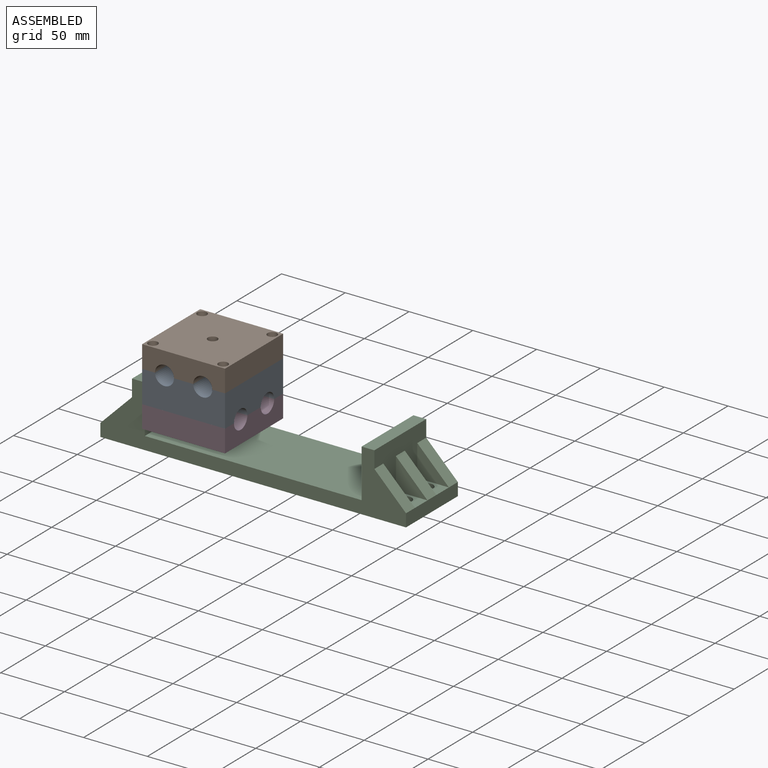
[diagram: assembled view]
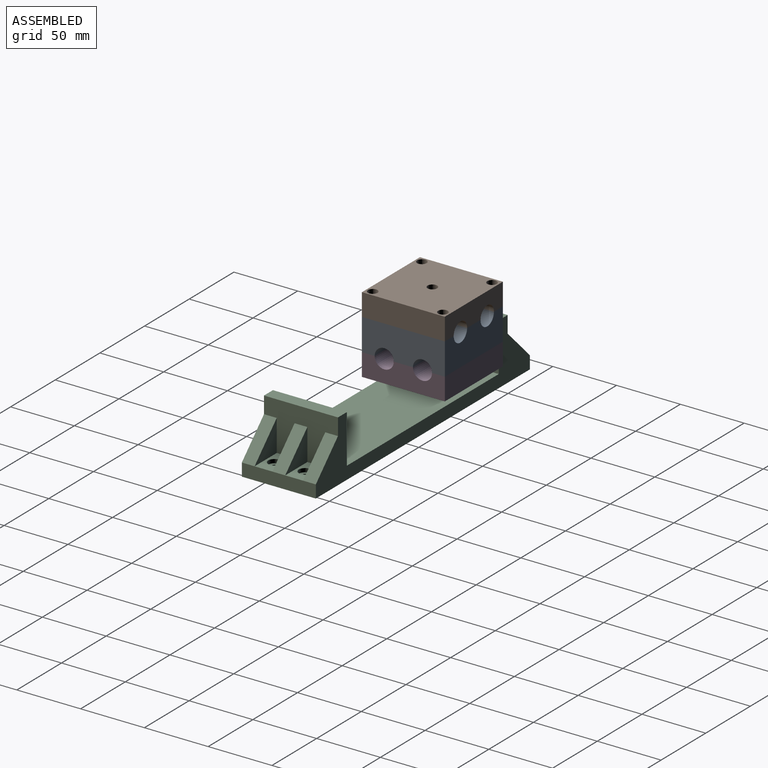
[diagram: assembled view, second angle]
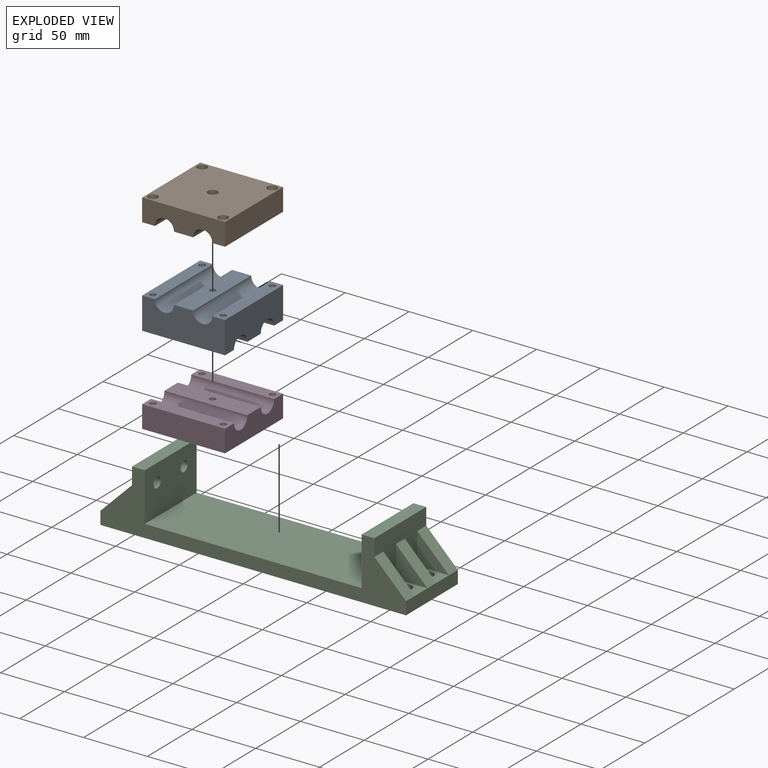
[diagram: exploded view]
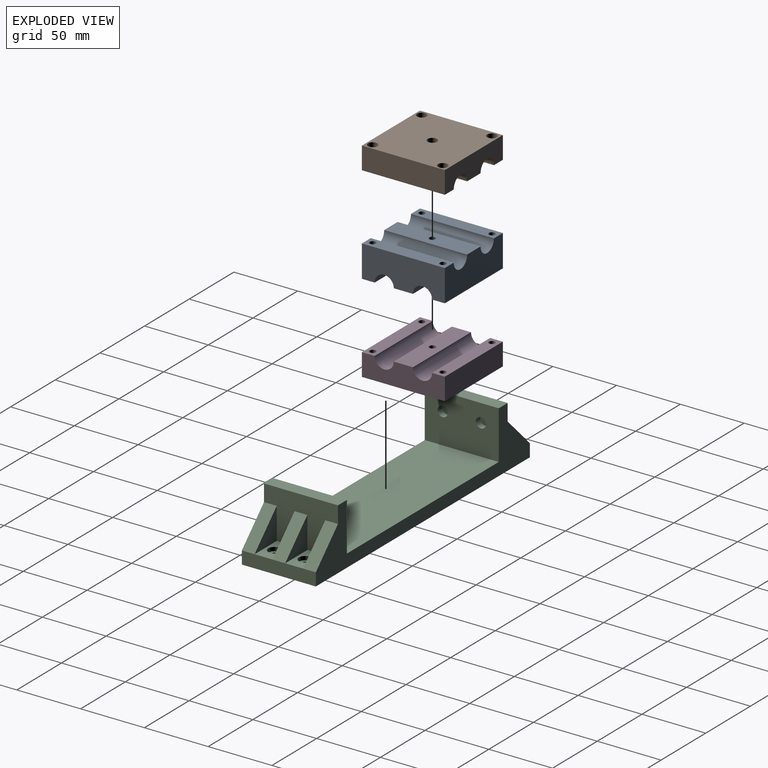
[diagram: exploded view, second angle]
ASSEMBLY  parts=4 mates=7
PART A: 19 faces, bbox 65x65x25 mm
  f0: plane 65x10mm, normal (0,0,1), area 613.8mm2, adj f5,f6,f9,f10,f15,f18
  f1: plane 65x10mm, normal (0,0,1), area 613.8mm2, adj f4,f8,f9,f10,f14,f17
  f2: plane 65x10mm, normal (0,0,-1), area 613.8mm2, adj f4,f5,f9,f11,f17,f18
  f3: plane 65x10mm, normal (0,0,-1), area 613.8mm2, adj f4,f5,f10,f13,f14,f15
  f4: plane 65x25mm, normal (-1,0,0), area 1448.3mm2, adj f1,f2,f3,f9,f10,f11,f12,f13
  f5: plane 65x25mm, normal (1,0,0), area 1448.3mm2, adj f0,f2,f3,f9,f10,f11,f12,f13
  f6: cylinder r=7.5mm len=65mm, axis (0,1,0), area 1531.5mm2, adj f0,f7,f9,f10
  f7: plane 65x15mm, normal (0,0,1), area 956.9mm2, adj f6,f8,f9,f10,f16
  f8: cylinder r=7.5mm len=65mm, axis (0,1,0), area 1531.5mm2, adj f1,f7,f9,f10
  f9: plane 65x25mm, normal (0,-1,0), area 1448.3mm2, adj f0,f1,f2,f4,f5,f6,f7,f8
  f10: plane 65x25mm, normal (0,1,0), area 1448.3mm2, adj f0,f1,f3,f4,f5,f6,f7,f8
  f11: cylinder r=7.5mm len=65mm, axis (-1,0,0), area 1531.5mm2, adj f2,f4,f5,f12
  f12: plane 65x15mm, normal (0,0,-1), area 956.9mm2, adj f4,f5,f11,f13,f16
  f13: cylinder r=7.5mm len=65mm, axis (-1,0,0), area 1531.5mm2, adj f3,f4,f5,f12
  f14: cylinder r=2.4mm len=25mm, axis (0,0,1), area 377mm2, adj f1,f3
  f15: cylinder r=2.4mm len=25mm, axis (0,0,1), area 377mm2, adj f0,f3
  f16: cylinder r=2.4mm len=25mm, axis (0,0,1), area 377mm2, adj f7,f12
  f17: cylinder r=2.4mm len=25mm, axis (0,0,1), area 377mm2, adj f1,f2
  f18: cylinder r=2.4mm len=25mm, axis (0,0,1), area 377mm2, adj f0,f2
PART B: 25 faces, bbox 65x65x17.5 mm
  f0: plane 65x65mm, normal (0,0,1), area 4004.1mm2, adj f8,f12,f13,f14,f16,f17,f20,f22
  f1: cylinder r=2.4mm len=13.5mm, axis (0,0,-1), area 203.6mm2, adj f7,f24
  f2: cylinder r=2.4mm len=13.5mm, axis (0,0,-1), area 203.6mm2, adj f7,f21
  f3: cylinder r=2.4mm len=13.5mm, axis (0,0,-1), area 203.6mm2, adj f10,f19
  f4: cylinder r=2.4mm len=13.5mm, axis (0,0,-1), area 203.6mm2, adj f6,f18
  f5: cylinder r=2.4mm len=13.5mm, axis (0,0,-1), area 203.6mm2, adj f6,f15
  f6: plane 65x10mm, normal (0,0,-1), area 613.8mm2, adj f4,f5,f8,f9,f13,f14
  f7: plane 65x10mm, normal (0,0,-1), area 613.8mm2, adj f1,f2,f11,f12,f13,f14
  f8: plane 65x17.5mm, normal (-1,0,0), area 1137.5mm2, adj f0,f6,f13,f14
  f9: cylinder r=7.5mm len=65mm, axis (0,1,0), area 1531.5mm2, adj f6,f10,f13,f14
  f10: plane 65x15mm, normal (0,0,-1), area 956.9mm2, adj f3,f9,f11,f13,f14
  f11: cylinder r=7.5mm len=65mm, axis (0,1,0), area 1531.5mm2, adj f7,f10,f13,f14
  f12: plane 65x17.5mm, normal (1,0,0), area 1137.5mm2, adj f0,f7,f13,f14
  f13: plane 65x17.5mm, normal (0,-1,0), area 960.8mm2, adj f0,f6,f7,f8,f9,f10,f11,f12
  f14: plane 65x17.5mm, normal (0,1,0), area 960.8mm2, adj f0,f6,f7,f8,f9,f10,f11,f12
  f15: plane 7.5x7.5mm, normal (0,0,1), area 26.1mm2, adj f5,f16
  f16: cylinder r=3.75mm len=7.5mm, axis (0,0,1), area 94.2mm2, adj f0,f15
  f17: cylinder r=3.75mm len=7.5mm, axis (0,0,1), area 94.2mm2, adj f0,f18
  f18: plane 7.5x7.5mm, normal (0,0,1), area 26.1mm2, adj f4,f17
  f19: plane 7.5x7.5mm, normal (0,0,1), area 26.1mm2, adj f3,f20
  f20: cylinder r=3.75mm len=7.5mm, axis (0,0,1), area 94.2mm2, adj f0,f19
  f21: plane 7.5x7.5mm, normal (0,0,1), area 26.1mm2, adj f2,f22
  f22: cylinder r=3.75mm len=7.5mm, axis (0,0,1), area 94.2mm2, adj f0,f21
  f23: cylinder r=3.75mm len=7.5mm, axis (0,0,1), area 94.2mm2, adj f0,f24
  f24: plane 7.5x7.5mm, normal (0,0,1), area 26.1mm2, adj f1,f23
PART C: 50 faces, bbox 239.6x58x48 mm
  f0: cylinder r=2.4mm len=7mm, axis (0,0,-1), area 105.6mm2, adj f2,f26
  f1: cylinder r=2.4mm len=7mm, axis (0,0,-1), area 105.6mm2, adj f2,f24
  f2: plane 239.6x58mm, normal (0,0,-1), area 13824.4mm2, adj f0,f1,f9,f10,f11,f27,f28,f34
  f3: plane 58x38mm, normal (-1,0,0), area 1460mm2, adj f4,f5,f8,f10,f11,f16,f17,f18
  f4: plane 24.8x14mm, normal (0,0,1), area 268.7mm2, adj f3,f9,f17,f22,f25
  f5: plane 24.8x14mm, normal (0,0,1), area 268.7mm2, adj f3,f9,f18,f20,f23
  f6: plane 58x38mm, normal (1,0,0), area 2103.5mm2, adj f7,f8,f10,f11,f12,f14
  f7: plane 170x58mm, normal (0,0,1), area 9860mm2, adj f6,f10,f11,f32
  f8: plane 58x10mm, normal (0,0,1), area 580mm2, adj f3,f6,f10,f11
  f9: plane 58x10mm, normal (-1,0,0), area 580mm2, adj f2,f4,f5,f10,f11,f16,f19,f21
  f10: plane 239.6x48mm, normal (0,-1,0), area 3771mm2, adj f2,f3,f6,f7,f8,f9,f21,f29
  f11: plane 239.6x48mm, normal (0,1,0), area 3771mm2, adj f2,f3,f6,f7,f8,f9,f19,f29
  f12: cylinder r=4mm len=8mm, axis (1,0,0), area 125.7mm2, adj f6,f13
  f13: plane 8x8mm, normal (1,0,0), area 50.3mm2, adj f12
  f14: cylinder r=4mm len=8mm, axis (1,0,0), area 125.7mm2, adj f6,f15
  f15: plane 8x8mm, normal (1,0,0), area 50.3mm2, adj f14
  f16: plane 24.8x24.8mm, normal (-0.71,0,0.71), area 350.7mm2, adj f3,f9,f17,f18
  f17: plane 24.8x24.8mm, normal (0,-1,0), area 307.5mm2, adj f3,f4,f16
  f18: plane 24.8x24.8mm, normal (0,1,0), area 307.5mm2, adj f3,f5,f16
  f19: plane 24.8x24.8mm, normal (-0.71,0,0.71), area 350.7mm2, adj f3,f9,f11,f20
  f20: plane 24.8x24.8mm, normal (0,-1,0), area 307.5mm2, adj f3,f5,f19
  f21: plane 24.8x24.8mm, normal (-0.71,0,0.71), area 350.7mm2, adj f3,f9,f10,f22
  f22: plane 24.8x24.8mm, normal (0,1,0), area 307.5mm2, adj f3,f4,f21
  f23: cylinder r=5mm len=10mm, axis (0,0,1), area 94.2mm2, adj f5,f24
  f24: plane 10x10mm, normal (0,0,1), area 60.4mm2, adj f1,f23
  f25: cylinder r=5mm len=10mm, axis (0,0,1), area 94.2mm2, adj f4,f26
  f26: plane 10x10mm, normal (0,0,1), area 60.4mm2, adj f0,f25
  f27: cylinder r=2.4mm len=7mm, axis (0,0,-1), area 105.6mm2, adj f2,f49
  f28: cylinder r=2.4mm len=7mm, axis (0,0,-1), area 105.6mm2, adj f2,f47
  f29: plane 58x38mm, normal (1,0,0), area 1460mm2, adj f10,f11,f30,f31,f33,f39,f40,f41
  f30: plane 24.8x14mm, normal (0,0,1), area 268.7mm2, adj f29,f34,f40,f45,f48
  f31: plane 24.8x14mm, normal (0,0,1), area 268.7mm2, adj f29,f34,f41,f43,f46
  f32: plane 58x38mm, normal (-1,0,0), area 2103.5mm2, adj f7,f10,f11,f33,f35,f37
  f33: plane 58x10mm, normal (0,0,1), area 580mm2, adj f10,f11,f29,f32
  f34: plane 58x10mm, normal (1,0,0), area 580mm2, adj f2,f10,f11,f30,f31,f39,f42,f44
  f35: cylinder r=4mm len=8mm, axis (-1,0,0), area 125.7mm2, adj f32,f36
  f36: plane 8x8mm, normal (-1,0,0), area 50.3mm2, adj f35
  f37: cylinder r=4mm len=8mm, axis (-1,0,0), area 125.7mm2, adj f32,f38
  f38: plane 8x8mm, normal (-1,0,0), area 50.3mm2, adj f37
  f39: plane 24.8x24.8mm, normal (0.71,0,0.71), area 350.7mm2, adj f29,f34,f40,f41
  f40: plane 24.8x24.8mm, normal (0,-1,0), area 307.5mm2, adj f29,f30,f39
  f41: plane 24.8x24.8mm, normal (0,1,0), area 307.5mm2, adj f29,f31,f39
  f42: plane 24.8x24.8mm, normal (0.71,0,0.71), area 350.7mm2, adj f11,f29,f34,f43
  f43: plane 24.8x24.8mm, normal (0,-1,0), area 307.5mm2, adj f29,f31,f42
  f44: plane 24.8x24.8mm, normal (0.71,0,0.71), area 350.7mm2, adj f10,f29,f34,f45
  f45: plane 24.8x24.8mm, normal (0,1,0), area 307.5mm2, adj f29,f30,f44
  f46: cylinder r=5mm len=10mm, axis (0,0,1), area 94.2mm2, adj f31,f47
  f47: plane 10x10mm, normal (0,0,1), area 60.4mm2, adj f28,f46
  f48: cylinder r=5mm len=10mm, axis (0,0,1), area 94.2mm2, adj f30,f49
  f49: plane 10x10mm, normal (0,0,1), area 60.4mm2, adj f27,f48
PART D: 50 faces, bbox 65x65x17.5 mm
  f0: plane 65x65mm, normal (0,0,1), area 4000.5mm2, adj f8,f12,f13,f14,f16,f17,f18,f19
  f1: cylinder r=2.4mm len=13.5mm, axis (0,0,-1), area 203.6mm2, adj f7,f49
  f2: cylinder r=2.4mm len=13.5mm, axis (0,0,-1), area 203.6mm2, adj f7,f36
  f3: cylinder r=2.4mm len=13.5mm, axis (0,0,-1), area 203.6mm2, adj f10,f29
  f4: cylinder r=2.4mm len=13.5mm, axis (0,0,-1), area 203.6mm2, adj f6,f28
  f5: cylinder r=2.4mm len=13.5mm, axis (0,0,-1), area 203.6mm2, adj f6,f15
  f6: plane 65x10mm, normal (0,0,-1), area 613.8mm2, adj f4,f5,f8,f9,f13,f14
  f7: plane 65x10mm, normal (0,0,-1), area 613.8mm2, adj f1,f2,f11,f12,f13,f14
  f8: plane 65x17.5mm, normal (-1,0,0), area 1137.5mm2, adj f0,f6,f13,f14
  f9: cylinder r=7.5mm len=65mm, axis (0,1,0), area 1531.5mm2, adj f6,f10,f13,f14
  f10: plane 65x15mm, normal (0,0,-1), area 956.9mm2, adj f3,f9,f11,f13,f14
  f11: cylinder r=7.5mm len=65mm, axis (0,1,0), area 1531.5mm2, adj f7,f10,f13,f14
  f12: plane 65x17.5mm, normal (1,0,0), area 1137.5mm2, adj f0,f7,f13,f14
  f13: plane 65x17.5mm, normal (0,-1,0), area 960.8mm2, adj f0,f6,f7,f8,f9,f10,f11,f12
  f14: plane 65x17.5mm, normal (0,1,0), area 960.8mm2, adj f0,f6,f7,f8,f9,f10,f11,f12
  f15: plane 8.31x7.2mm, normal (0,0,1), area 26.8mm2, adj f5,f16,f17,f18,f19,f20,f21
  f16: plane 4x3.6mm, normal (-0.5,0.87,0), area 16.6mm2, adj f0,f15,f17,f21
  f17: plane 4.16x4mm, normal (-1,0,0), area 16.6mm2, adj f0,f15,f16,f18
  f18: plane 4x3.6mm, normal (-0.5,-0.87,0), area 16.6mm2, adj f0,f15,f17,f19
  f19: plane 4x3.6mm, normal (0.5,-0.87,0), area 16.6mm2, adj f0,f15,f18,f20
  f20: plane 4.16x4mm, normal (1,0,0), area 16.6mm2, adj f0,f15,f19,f21
  f21: plane 4x3.6mm, normal (0.5,0.87,0), area 16.6mm2, adj f0,f15,f16,f20
  f22: plane 4x3.6mm, normal (-0.5,0.87,0), area 16.6mm2, adj f0,f23,f27,f28
  f23: plane 4.16x4mm, normal (-1,0,0), area 16.6mm2, adj f0,f22,f24,f28
  f24: plane 4x3.6mm, normal (-0.5,-0.87,0), area 16.6mm2, adj f0,f23,f25,f28
  f25: plane 4x3.6mm, normal (0.5,-0.87,0), area 16.6mm2, adj f0,f24,f26,f28
  f26: plane 4.16x4mm, normal (1,0,0), area 16.6mm2, adj f0,f25,f27,f28
  f27: plane 4x3.6mm, normal (0.5,0.87,0), area 16.6mm2, adj f0,f22,f26,f28
  f28: plane 8.31x7.2mm, normal (0,0,1), area 26.8mm2, adj f4,f22,f23,f24,f25,f26,f27
  f29: plane 8.31x7.2mm, normal (0,0,1), area 26.8mm2, adj f3,f30,f31,f32,f33,f34,f35
  f30: plane 4.16x4mm, normal (-1,0,0), area 16.6mm2, adj f0,f29,f31,f35
  f31: plane 4x3.6mm, normal (-0.5,-0.87,0), area 16.6mm2, adj f0,f29,f30,f32
  f32: plane 4x3.6mm, normal (0.5,-0.87,0), area 16.6mm2, adj f0,f29,f31,f33
  f33: plane 4.16x4mm, normal (1,0,0), area 16.6mm2, adj f0,f29,f32,f34
  f34: plane 4x3.6mm, normal (0.5,0.87,0), area 16.6mm2, adj f0,f29,f33,f35
  f35: plane 4x3.6mm, normal (-0.5,0.87,0), area 16.6mm2, adj f0,f29,f30,f34
  f36: plane 8.31x7.2mm, normal (0,0,1), area 26.8mm2, adj f2,f37,f38,f39,f40,f41,f42
  f37: plane 4x3.6mm, normal (-0.5,-0.87,0), area 16.6mm2, adj f0,f36,f38,f42
  f38: plane 4x3.6mm, normal (0.5,-0.87,0), area 16.6mm2, adj f0,f36,f37,f39
  f39: plane 4.16x4mm, normal (1,0,0), area 16.6mm2, adj f0,f36,f38,f40
  f40: plane 4x3.6mm, normal (0.5,0.87,0), area 16.6mm2, adj f0,f36,f39,f41
  f41: plane 4x3.6mm, normal (-0.5,0.87,0), area 16.6mm2, adj f0,f36,f40,f42
  f42: plane 4.16x4mm, normal (-1,0,0), area 16.6mm2, adj f0,f36,f37,f41
  f43: plane 4x3.6mm, normal (-0.5,0.87,0), area 16.6mm2, adj f0,f44,f48,f49
  f44: plane 4.16x4mm, normal (-1,0,0), area 16.6mm2, adj f0,f43,f45,f49
  f45: plane 4x3.6mm, normal (-0.5,-0.87,0), area 16.6mm2, adj f0,f44,f46,f49
  f46: plane 4x3.6mm, normal (0.5,-0.87,0), area 16.6mm2, adj f0,f45,f47,f49
  f47: plane 4.16x4mm, normal (1,0,0), area 16.6mm2, adj f0,f46,f48,f49
  f48: plane 4x3.6mm, normal (0.5,0.87,0), area 16.6mm2, adj f0,f43,f47,f49
  f49: plane 8.31x7.2mm, normal (0,0,1), area 26.8mm2, adj f1,f43,f44,f45,f46,f47,f48
PLACE A t=(-153.94,92.95,-95.46)mm
PLACE B t=(-153.94,92.95,-82.96)mm
PLACE C t=(-101.83,92.95,-141.96)mm fixed
PLACE D rot(axis=(0.71,-0.71,0),180deg) t=(-153.94,92.95,-107.96)mm
MATE planar A.f1 <-> B.f3  axis (0,0,1) through (-181.44,92.95,-82.96)mm
MATE planar B.f13 <-> A.f9  axis (0,-1,0) through (-153.94,60.45,-73.19)mm
MATE planar A.f9 <-> D.f12  axis (0,-1,0) through (-153.94,60.45,-96.6)mm
MATE slider C.f14 <-> D.f11  axis (-1,0,0) through (-16.83,77.95,-107.96)mm
MATE planar A.f4 <-> B.f8  axis (-1,0,0) through (-186.44,92.95,-94.32)mm
MATE planar D.f14 <-> A.f4  axis (-1,0,0) through (-186.44,92.95,-117.74)mm
MATE planar D.f3 <-> A.f16  axis (0,0,1) through (-153.94,92.95,-107.96)mm
